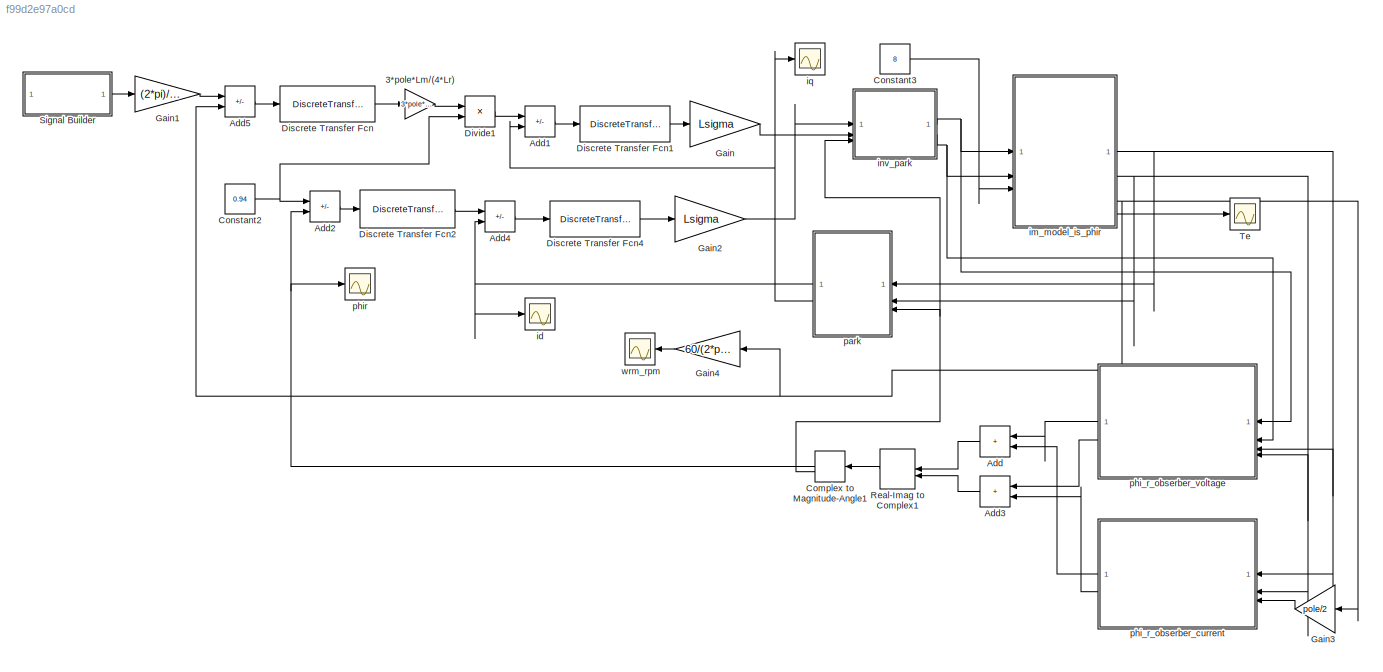
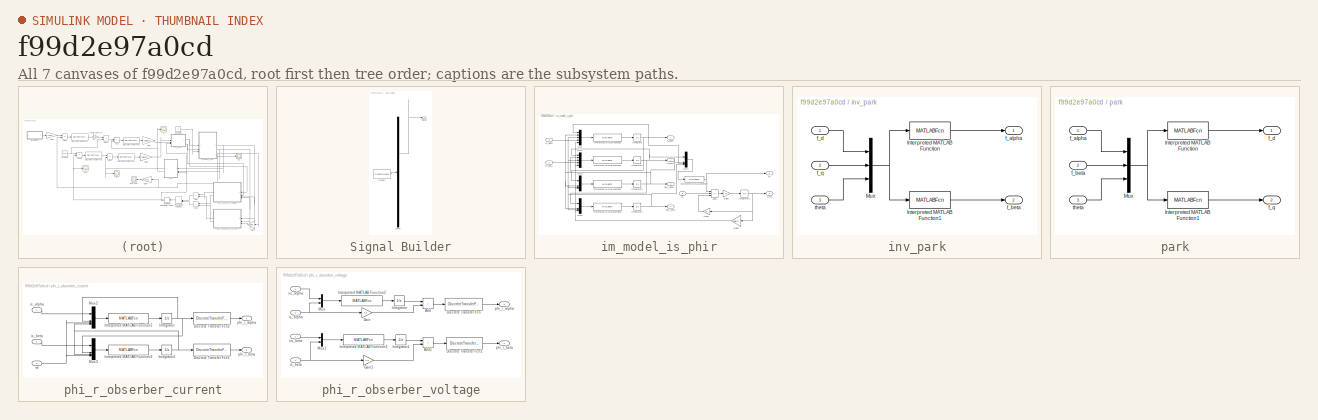
[diagram: thumbnail index - all 7 canvases of the model, root first then tree order]
MODEL slx_f99d2e97a0cd
KIND model
CONFIG AbsTol = auto
CONFIG EnableMultiTasking = off
CONFIG FixedStep = 0.00001
CONFIG MaxStep = auto
CONFIG MinStep = auto
CONFIG RelTol = 1e-3
CONFIG SampleTimeConstraint = Unconstrained
CONFIG SolverName = VariableStepAuto
CONFIG StartTime = 0.0
CONFIG StopTime = 2
BLOCK [Gain] 3*pole*Lm//(4*Lr)
  Gain = 3*pole*Lm/(4*Lr)
  NameLocation = top
BLOCK [Sum] Add
  IconShape = rectangular
BLOCK [Sum] Add1
  IconShape = rectangular
  Inputs = +-
BLOCK [Sum] Add2
  IconShape = rectangular
  Inputs = +-
BLOCK [Sum] Add3
  IconShape = rectangular
BLOCK [Sum] Add4
  IconShape = rectangular
  Inputs = +-
BLOCK [Sum] Add5
  IconShape = rectangular
  Inputs = +-
BLOCK [ComplexToMagnitudeAngle] Complex to Magnitude-Angle1
BLOCK [Constant] Constant2
  Value = 0.94
BLOCK [Constant] Constant3
  Value = 8
BLOCK [DiscreteTransferFcn] Discrete Transfer Fcn
  Denominator = [1 -1]
  InputPortMap = u0
  Numerator = [10.36 -10.36]
  SampleTime = 0.001
BLOCK [DiscreteTransferFcn] Discrete Transfer Fcn1
  Denominator = [1 -1]
  InputPortMap = u0
  Numerator = [3140 -3034]
  SampleTime = 0.00025
BLOCK [DiscreteTransferFcn] Discrete Transfer Fcn2
  Denominator = [1 -1]
  InputPortMap = u0
  Numerator = [542 -538.2]
  SampleTime = 0.001
BLOCK [DiscreteTransferFcn] Discrete Transfer Fcn4
  Denominator = [1 -1]
  InputPortMap = u0
  Numerator = [3140 -2957]
  SampleTime = 0.00025
BLOCK [Product] Divide1
  Inputs = */
BLOCK [Gain] Gain
  Gain = Lsigma
BLOCK [Gain] Gain1
  Gain = (2*pi)/60
  NameLocation = top
BLOCK [Gain] Gain2
  Gain = Lsigma
BLOCK [Gain] Gain3
  Gain = pole/2
BLOCK [Gain] Gain4
  Gain = 60/(2*pi)
BLOCK [RealImagToComplex] Real-Imag to Complex1
BLOCK [SubSystem] Signal Builder
  ClipboardFcn = sigbuilder_block('clipboard');
  CloseFcn = sigbuilder_block('close');
  ContinueFcn = sigbuilder_block('continue');
  CopyFcn = sigbuilder_block('copy');
  DeleteFcn = sigbuilder_block('delete');
  LoadFcn = sigbuilder_block('load');
  MaskHideContents = on
  ModelCloseFcn = sigbuilder_block('modelClose');
  NameChangeFcn = sigbuilder_block('namechange');
  OpenFcn = sigbuilder_block('open',[346 178 550 400 ]);
  PauseFcn = sigbuilder_block('pause');
  PreSaveFcn = sigbuilder_block('preSave');
  StartFcn = sigbuilder_block('start');
  StopFcn = sigbuilder_block('stop');
  Tag = STV Subsys
BLOCK [Demux] Signal Builder/Demux
  DisplayOption = none
  Outputs = 1
  Tag = STV Demux
BLOCK [FromWorkspace] Signal Builder/FromWs
  Tag = STV FromWs
  VariableName = tuvar
BLOCK [Outport] Signal Builder/Signal 1
  Tag = STV Outport
BLOCK [Scope] Te
  Floating = off
  NumInputPorts = 1
  ScopeSpecificationString = Simulink.scopes.TimeScopeBlockCfg('CurrentConfiguration', extmgr.ConfigurationSet(extmgr.Configuration('Core','General UI',true,'FigureColor',[1 1 1]),extmgr.Configuration('Core','Source UI',true),extmgr.Configuration('Sources','WiredSimulink',true,'DataLoggingVariableName','ScopeData1'),extmgr.Configuration('Visuals','Time Domain',true,'SerializedDisplays',{struct('MinYLimReal','-2.97735','MaxYLi...<+1574ch>
BLOCK [Scope] id
  Floating = off
  NumInputPorts = 1
  ScopeSpecificationString = Simulink.scopes.TimeScopeBlockCfg('CurrentConfiguration', extmgr.ConfigurationSet(extmgr.Configuration('Core','General UI',true,'FigureColor',[1 1 1]),extmgr.Configuration('Core','Source UI',true),extmgr.Configuration('Sources','WiredSimulink',true,'DataLoggingVariableName','ScopeData4'),extmgr.Configuration('Visuals','Time Domain',true,'SerializedDisplays',{struct('MinYLimReal','-59.29869','MaxYL...<+1564ch>
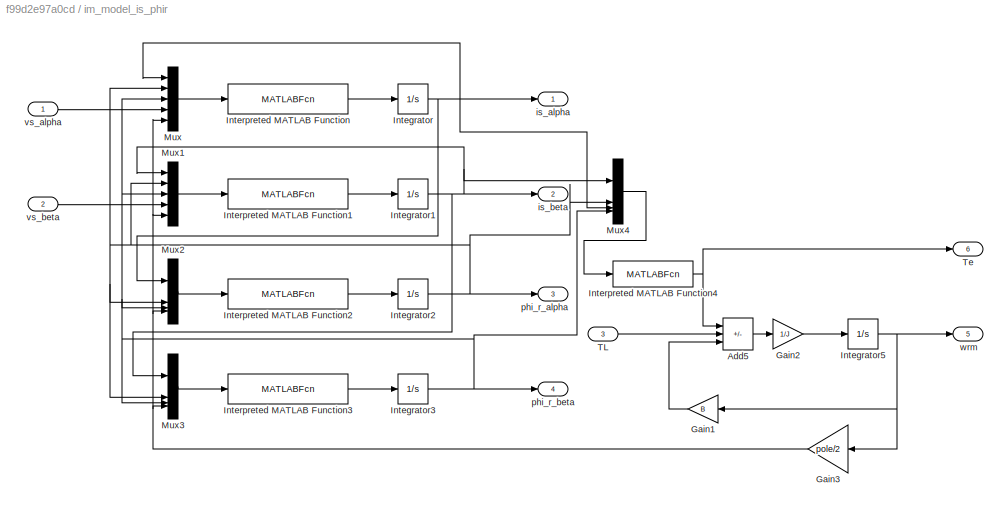
BLOCK [SubSystem] im_model_is_phir
BLOCK [Sum] im_model_is_phir/Add5
  IconShape = rectangular
  Inputs = +--
BLOCK [Gain] im_model_is_phir/Gain1
  Gain = B
BLOCK [Gain] im_model_is_phir/Gain2
  Gain = 1/J
BLOCK [Gain] im_model_is_phir/Gain3
  Gain = pole/2
BLOCK [Integrator] im_model_is_phir/Integrator
BLOCK [Integrator] im_model_is_phir/Integrator1
BLOCK [Integrator] im_model_is_phir/Integrator2
BLOCK [Integrator] im_model_is_phir/Integrator3
BLOCK [Integrator] im_model_is_phir/Integrator5
BLOCK [MATLABFcn] im_model_is_phir/Interpreted MATLAB Function
  MATLABFcn = K1*u(1)+K2*u(2)+K3*u(5)*u(3)+K4*u(4)
BLOCK [MATLABFcn] im_model_is_phir/Interpreted MATLAB Function1
  MATLABFcn = K1*u(1)-K3*u(5)*u(2)+K2*u(3)+K4*u(4)
BLOCK [MATLABFcn] im_model_is_phir/Interpreted MATLAB Function2
  MATLABFcn = K5*u(1)+K6*u(2)-u(4)*u(3)
BLOCK [MATLABFcn] im_model_is_phir/Interpreted MATLAB Function3
  MATLABFcn = K5*u(1)+u(4)*u(2)+K6*u(3)
BLOCK [MATLABFcn] im_model_is_phir/Interpreted MATLAB Function4
  MATLABFcn = (u(1)*u(2)-u(3)*u(4))*3*pole*Lm/(4*Lr)
BLOCK [Mux] im_model_is_phir/Mux
  DisplayOption = bar
  Inputs = 5
BLOCK [Mux] im_model_is_phir/Mux1
  DisplayOption = bar
  Inputs = 5
BLOCK [Mux] im_model_is_phir/Mux2
  DisplayOption = bar
BLOCK [Mux] im_model_is_phir/Mux3
  DisplayOption = bar
BLOCK [Mux] im_model_is_phir/Mux4
  DisplayOption = bar
BLOCK [Inport] im_model_is_phir/TL
  Port = 3
BLOCK [Outport] im_model_is_phir/Te
  Port = 6
BLOCK [Outport] im_model_is_phir/is_alpha
BLOCK [Outport] im_model_is_phir/is_beta
  Port = 2
BLOCK [Outport] im_model_is_phir/phi_r_alpha
  Port = 3
BLOCK [Outport] im_model_is_phir/phi_r_beta
  Port = 4
BLOCK [Inport] im_model_is_phir/vs_alpha
BLOCK [Inport] im_model_is_phir/vs_beta
  Port = 2
BLOCK [Outport] im_model_is_phir/wrm
  Port = 5
BLOCK [SubSystem] inv_park
BLOCK [MATLABFcn] inv_park/Interpreted MATLAB Function
  MATLABFcn = cos(u(3))*u(1)-sin(u(3))*u(2)
BLOCK [MATLABFcn] inv_park/Interpreted MATLAB Function1
  MATLABFcn = sin(u(3))*u(1)+cos(u(3))*u(2)
BLOCK [Mux] inv_park/Mux
  DisplayOption = bar
  Inputs = 3
BLOCK [Outport] inv_park/f_alpha
BLOCK [Outport] inv_park/f_beta
  Port = 2
BLOCK [Inport] inv_park/f_d
BLOCK [Inport] inv_park/f_q
  Port = 2
BLOCK [Inport] inv_park/theta
  Port = 3
BLOCK [Scope] iq
  Floating = off
  NumInputPorts = 1
  ScopeSpecificationString = Simulink.scopes.TimeScopeBlockCfg('CurrentConfiguration', extmgr.ConfigurationSet(extmgr.Configuration('Core','General UI',true,'FigureColor',[1 1 1]),extmgr.Configuration('Core','Source UI',true),extmgr.Configuration('Sources','WiredSimulink',true,'DataLoggingVariableName','ScopeData1'),extmgr.Configuration('Visuals','Time Domain',true,'SerializedDisplays',{struct('MinYLimReal','-1.62585','MaxYLi...<+1562ch>
BLOCK [SubSystem] park
BLOCK [MATLABFcn] park/Interpreted MATLAB Function
  MATLABFcn = cos(u(3))*u(1)+sin(u(3))*u(2)
BLOCK [MATLABFcn] park/Interpreted MATLAB Function1
  MATLABFcn = -sin(u(3))*u(1)+cos(u(3))*u(2)
BLOCK [Mux] park/Mux
  DisplayOption = bar
  Inputs = 3
BLOCK [Inport] park/f_alpha
BLOCK [Inport] park/f_beta
  Port = 2
BLOCK [Outport] park/f_d
BLOCK [Outport] park/f_q
  Port = 2
BLOCK [Inport] park/theta
  Port = 3
BLOCK [SubSystem] phi_r_obserber_current
BLOCK [DiscreteTransferFcn] phi_r_obserber_current/Discrete Transfer Fcn1
  Denominator = [1 -0.9844]
  InputPortMap = u0
  Numerator = [0.01559]
  SampleTime = 0.00025
BLOCK [DiscreteTransferFcn] phi_r_obserber_current/Discrete Transfer Fcn2
  Denominator = [1 -0.9844]
  InputPortMap = u0
  Numerator = [0.01559]
  SampleTime = 0.00025
BLOCK [Integrator] phi_r_obserber_current/Integrator
BLOCK [Integrator] phi_r_obserber_current/Integrator1
BLOCK [MATLABFcn] phi_r_obserber_current/Interpreted MATLAB Function2
  MATLABFcn = K5*u(1)+K6*u(2)-u(4)*u(3)
BLOCK [MATLABFcn] phi_r_obserber_current/Interpreted MATLAB Function3
  MATLABFcn = K5*u(1)+u(4)*u(2)+K6*u(3)
BLOCK [Mux] phi_r_obserber_current/Mux2
  DisplayOption = bar
BLOCK [Mux] phi_r_obserber_current/Mux3
  DisplayOption = bar
BLOCK [Inport] phi_r_obserber_current/is_alpha
BLOCK [Inport] phi_r_obserber_current/is_beta
  Port = 2
BLOCK [Outport] phi_r_obserber_current/phi_r_alpha
BLOCK [Outport] phi_r_obserber_current/phi_r_beta
  Port = 2
BLOCK [Inport] phi_r_obserber_current/wr
  Port = 3
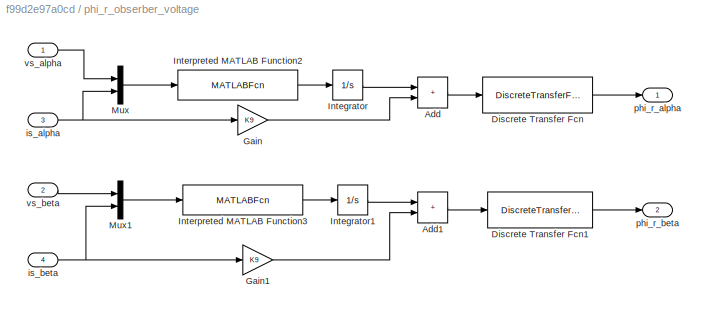
BLOCK [SubSystem] phi_r_obserber_voltage
BLOCK [Sum] phi_r_obserber_voltage/Add
  IconShape = rectangular
BLOCK [Sum] phi_r_obserber_voltage/Add1
  IconShape = rectangular
BLOCK [DiscreteTransferFcn] phi_r_obserber_voltage/Discrete Transfer Fcn
  Denominator = [1 -0.9844]
  InputPortMap = u0
  Numerator = [1 -1]
  SampleTime = 0.00025
BLOCK [DiscreteTransferFcn] phi_r_obserber_voltage/Discrete Transfer Fcn1
  Denominator = [1 -0.9844]
  InputPortMap = u0
  Numerator = [1 -1]
  SampleTime = 0.00025
BLOCK [Gain] phi_r_obserber_voltage/Gain
  Gain = K9
BLOCK [Gain] phi_r_obserber_voltage/Gain1
  Gain = K9
BLOCK [Integrator] phi_r_obserber_voltage/Integrator
BLOCK [Integrator] phi_r_obserber_voltage/Integrator1
BLOCK [MATLABFcn] phi_r_obserber_voltage/Interpreted MATLAB Function2
  MATLABFcn = K7*u(1)+K8*u(2)
BLOCK [MATLABFcn] phi_r_obserber_voltage/Interpreted MATLAB Function3
  MATLABFcn = K7*u(1)+K8*u(2)
BLOCK [Mux] phi_r_obserber_voltage/Mux
  DisplayOption = bar
  Inputs = 2
BLOCK [Mux] phi_r_obserber_voltage/Mux1
  DisplayOption = bar
  Inputs = 2
BLOCK [Inport] phi_r_obserber_voltage/is_alpha
  Port = 3
BLOCK [Inport] phi_r_obserber_voltage/is_beta
  Port = 4
BLOCK [Outport] phi_r_obserber_voltage/phi_r_alpha
BLOCK [Outport] phi_r_obserber_voltage/phi_r_beta
  Port = 2
BLOCK [Inport] phi_r_obserber_voltage/vs_alpha
BLOCK [Inport] phi_r_obserber_voltage/vs_beta
  Port = 2
BLOCK [Scope] phir
  Floating = off
  NumInputPorts = 1
  ScopeSpecificationString = Simulink.scopes.TimeScopeBlockCfg('CurrentConfiguration', extmgr.ConfigurationSet(extmgr.Configuration('Core','General UI',true,'FigureColor',[1 1 1]),extmgr.Configuration('Core','Source UI',true),extmgr.Configuration('Sources','WiredSimulink',true,'DataLoggingVariableName','ScopeData2'),extmgr.Configuration('Visuals','Time Domain',true,'SerializedDisplays',{struct('MinYLimReal','-0.1175','MaxYLim...<+1575ch>
BLOCK [Scope] wrm_rpm
  Floating = off
  NameLocation = top
  NumInputPorts = 1
  ScopeSpecificationString = Simulink.scopes.TimeScopeBlockCfg('CurrentConfiguration', extmgr.ConfigurationSet(extmgr.Configuration('Core','General UI',true,'FigureColor',[1 1 1]),extmgr.Configuration('Core','Source UI',true),extmgr.Configuration('Sources','WiredSimulink',true),extmgr.Configuration('Visuals','Time Domain',true,'SerializedDisplays',{struct('MinYLimReal','-127.95169','MaxYLimReal','1124.90654','YLabelReal','','...<+1536ch>
LINE 3*pole*Lm//(4*Lr):1 -> Divide1:1
LINE Add1:1 -> Discrete Transfer Fcn1:1
LINE Add2:1 -> Discrete Transfer Fcn2:1
LINE Add3:1 -> Real-Imag to Complex1:2
LINE Add4:1 -> Discrete Transfer Fcn4:1
LINE Add5:1 -> Discrete Transfer Fcn:1
LINE Add:1 -> Real-Imag to Complex1:1
NET Complex to Magnitude-Angle1:1 -> Add2:2, phir:1
NET Complex to Magnitude-Angle1:2 -> inv_park:3, park:3
NET Constant2:1 -> Add2:1, Divide1:2
LINE Constant3:1 -> im_model_is_phir:3
LINE Discrete Transfer Fcn1:1 -> Gain:1
LINE Discrete Transfer Fcn2:1 -> Add4:1
LINE Discrete Transfer Fcn4:1 -> Gain2:1
LINE Discrete Transfer Fcn:1 -> 3*pole*Lm//(4*Lr):1
LINE Divide1:1 -> Add1:1
LINE Gain1:1 -> Add5:1
LINE Gain2:1 -> inv_park:1
LINE Gain3:1 -> phi_r_obserber_current:3
LINE Gain4:1 -> wrm_rpm:1
LINE Gain:1 -> inv_park:2
LINE Real-Imag to Complex1:1 -> Complex to Magnitude-Angle1:1
LINE Signal Builder:1 -> Gain1:1
LINE im_model_is_phir/Add5:1 -> im_model_is_phir/Gain2:1
LINE im_model_is_phir/Gain1:1 -> im_model_is_phir/Add5:3
LINE im_model_is_phir/Gain2:1 -> im_model_is_phir/Integrator5:1
NET im_model_is_phir/Gain3:1 -> im_model_is_phir/Mux1:5, im_model_is_phir/Mux2:4, im_model_is_phir/Mux3:4, im_model_is_phir/Mux:5
NET im_model_is_phir/Integrator1:1 -> im_model_is_phir/Mux1:1, im_model_is_phir/Mux3:1, im_model_is_phir/Mux4:1, im_model_is_phir/is_beta:1
NET im_model_is_phir/Integrator2:1 -> im_model_is_phir/Mux1:2, im_model_is_phir/Mux2:2, im_model_is_phir/Mux3:2, im_model_is_phir/Mux4:2, im_model_is_phir/Mux:2, im_model_is_phir/phi_r_alpha:1
NET im_model_is_phir/Integrator3:1 -> im_model_is_phir/Mux1:3, im_model_is_phir/Mux2:3, im_model_is_phir/Mux3:3, im_model_is_phir/Mux4:4, im_model_is_phir/Mux:3, im_model_is_phir/phi_r_beta:1
NET im_model_is_phir/Integrator5:1 -> im_model_is_phir/Gain1:1, im_model_is_phir/Gain3:1, im_model_is_phir/wrm:1
NET im_model_is_phir/Integrator:1 -> im_model_is_phir/Mux2:1, im_model_is_phir/Mux4:3, im_model_is_phir/Mux:1, im_model_is_phir/is_alpha:1
LINE im_model_is_phir/Interpreted MATLAB Function1:1 -> im_model_is_phir/Integrator1:1
LINE im_model_is_phir/Interpreted MATLAB Function2:1 -> im_model_is_phir/Integrator2:1
LINE im_model_is_phir/Interpreted MATLAB Function3:1 -> im_model_is_phir/Integrator3:1
NET im_model_is_phir/Interpreted MATLAB Function4:1 -> im_model_is_phir/Add5:1, im_model_is_phir/Te:1
LINE im_model_is_phir/Interpreted MATLAB Function:1 -> im_model_is_phir/Integrator:1
LINE im_model_is_phir/Mux1:1 -> im_model_is_phir/Interpreted MATLAB Function1:1
LINE im_model_is_phir/Mux2:1 -> im_model_is_phir/Interpreted MATLAB Function2:1
LINE im_model_is_phir/Mux3:1 -> im_model_is_phir/Interpreted MATLAB Function3:1
LINE im_model_is_phir/Mux4:1 -> im_model_is_phir/Interpreted MATLAB Function4:1
LINE im_model_is_phir/Mux:1 -> im_model_is_phir/Interpreted MATLAB Function:1
LINE im_model_is_phir/TL:1 -> im_model_is_phir/Add5:2
LINE im_model_is_phir/vs_alpha:1 -> im_model_is_phir/Mux:4
LINE im_model_is_phir/vs_beta:1 -> im_model_is_phir/Mux1:4
NET im_model_is_phir:1 -> park:1, phi_r_obserber_current:1, phi_r_obserber_voltage:3
NET im_model_is_phir:2 -> park:2, phi_r_obserber_current:2, phi_r_obserber_voltage:4
NET im_model_is_phir:5 -> Add5:2, Gain3:1, Gain4:1
LINE im_model_is_phir:6 -> Te:1
LINE inv_park/Interpreted MATLAB Function1:1 -> inv_park/f_beta:1
LINE inv_park/Interpreted MATLAB Function:1 -> inv_park/f_alpha:1
NET inv_park/Mux:1 -> inv_park/Interpreted MATLAB Function1:1, inv_park/Interpreted MATLAB Function:1
LINE inv_park/f_d:1 -> inv_park/Mux:1
LINE inv_park/f_q:1 -> inv_park/Mux:2
LINE inv_park/theta:1 -> inv_park/Mux:3
NET inv_park:1 -> im_model_is_phir:1, phi_r_obserber_voltage:1
NET inv_park:2 -> im_model_is_phir:2, phi_r_obserber_voltage:2
LINE park/Interpreted MATLAB Function1:1 -> park/f_q:1
LINE park/Interpreted MATLAB Function:1 -> park/f_d:1
NET park/Mux:1 -> park/Interpreted MATLAB Function1:1, park/Interpreted MATLAB Function:1
LINE park/f_alpha:1 -> park/Mux:1
LINE park/f_beta:1 -> park/Mux:2
LINE park/theta:1 -> park/Mux:3
NET park:1 -> Add4:2, id:1
NET park:2 -> Add1:2, iq:1
LINE phi_r_obserber_current/Discrete Transfer Fcn1:1 -> phi_r_obserber_current/phi_r_beta:1
LINE phi_r_obserber_current/Discrete Transfer Fcn2:1 -> phi_r_obserber_current/phi_r_alpha:1
NET phi_r_obserber_current/Integrator1:1 -> phi_r_obserber_current/Discrete Transfer Fcn1:1, phi_r_obserber_current/Mux2:4, phi_r_obserber_current/Mux3:3
NET phi_r_obserber_current/Integrator:1 -> phi_r_obserber_current/Discrete Transfer Fcn2:1, phi_r_obserber_current/Mux2:2, phi_r_obserber_current/Mux3:2
LINE phi_r_obserber_current/Interpreted MATLAB Function2:1 -> phi_r_obserber_current/Integrator:1
LINE phi_r_obserber_current/Interpreted MATLAB Function3:1 -> phi_r_obserber_current/Integrator1:1
LINE phi_r_obserber_current/Mux2:1 -> phi_r_obserber_current/Interpreted MATLAB Function2:1
LINE phi_r_obserber_current/Mux3:1 -> phi_r_obserber_current/Interpreted MATLAB Function3:1
LINE phi_r_obserber_current/is_alpha:1 -> phi_r_obserber_current/Mux2:1
LINE phi_r_obserber_current/is_beta:1 -> phi_r_obserber_current/Mux3:1
NET phi_r_obserber_current/wr:1 -> phi_r_obserber_current/Mux2:3, phi_r_obserber_current/Mux3:4
LINE phi_r_obserber_current:1 -> Add:2
LINE phi_r_obserber_current:2 -> Add3:2
LINE phi_r_obserber_voltage/Add1:1 -> phi_r_obserber_voltage/Discrete Transfer Fcn1:1
LINE phi_r_obserber_voltage/Add:1 -> phi_r_obserber_voltage/Discrete Transfer Fcn:1
LINE phi_r_obserber_voltage/Discrete Transfer Fcn1:1 -> phi_r_obserber_voltage/phi_r_beta:1
LINE phi_r_obserber_voltage/Discrete Transfer Fcn:1 -> phi_r_obserber_voltage/phi_r_alpha:1
LINE phi_r_obserber_voltage/Gain1:1 -> phi_r_obserber_voltage/Add1:2
LINE phi_r_obserber_voltage/Gain:1 -> phi_r_obserber_voltage/Add:2
LINE phi_r_obserber_voltage/Integrator1:1 -> phi_r_obserber_voltage/Add1:1
LINE phi_r_obserber_voltage/Integrator:1 -> phi_r_obserber_voltage/Add:1
LINE phi_r_obserber_voltage/Interpreted MATLAB Function2:1 -> phi_r_obserber_voltage/Integrator:1
LINE phi_r_obserber_voltage/Interpreted MATLAB Function3:1 -> phi_r_obserber_voltage/Integrator1:1
LINE phi_r_obserber_voltage/Mux1:1 -> phi_r_obserber_voltage/Interpreted MATLAB Function3:1
LINE phi_r_obserber_voltage/Mux:1 -> phi_r_obserber_voltage/Interpreted MATLAB Function2:1
NET phi_r_obserber_voltage/is_alpha:1 -> phi_r_obserber_voltage/Gain:1, phi_r_obserber_voltage/Mux:2
NET phi_r_obserber_voltage/is_beta:1 -> phi_r_obserber_voltage/Gain1:1, phi_r_obserber_voltage/Mux1:2
LINE phi_r_obserber_voltage/vs_alpha:1 -> phi_r_obserber_voltage/Mux:1
LINE phi_r_obserber_voltage/vs_beta:1 -> phi_r_obserber_voltage/Mux1:1
LINE phi_r_obserber_voltage:1 -> Add:1
LINE phi_r_obserber_voltage:2 -> Add3:1
note: NET lines group one-source signal fan-out (src -> all destinations, sorted); 1:1 wires keep LINE
